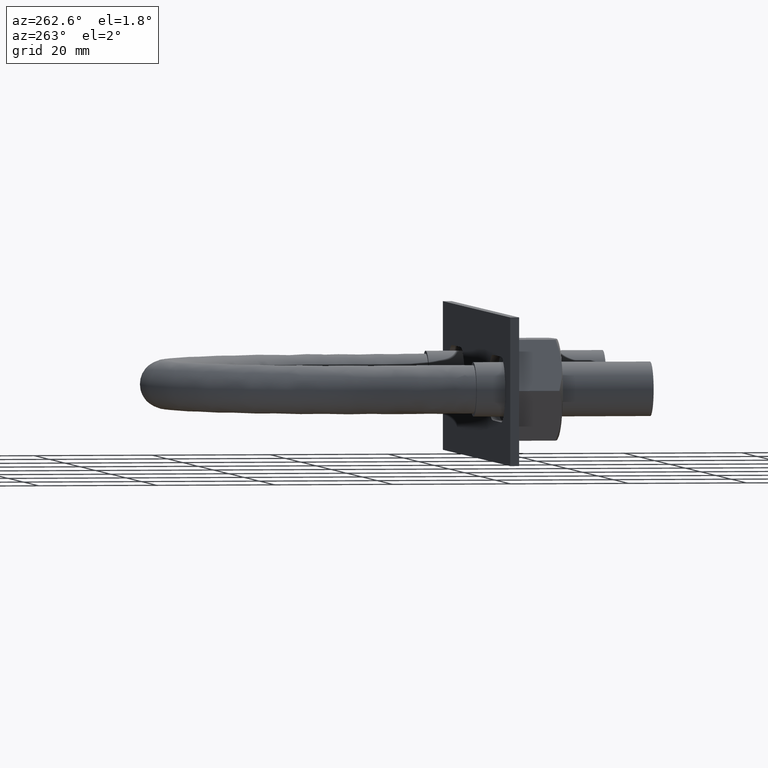
[diagram: clean part render]
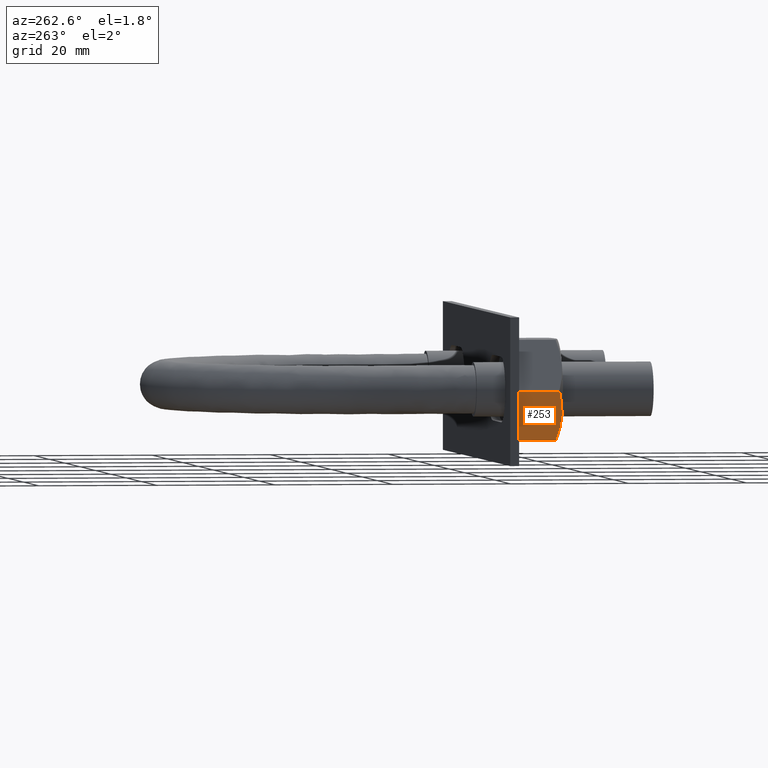
[diagram: same view with one face highlighted and labeled with its STEP entity id]
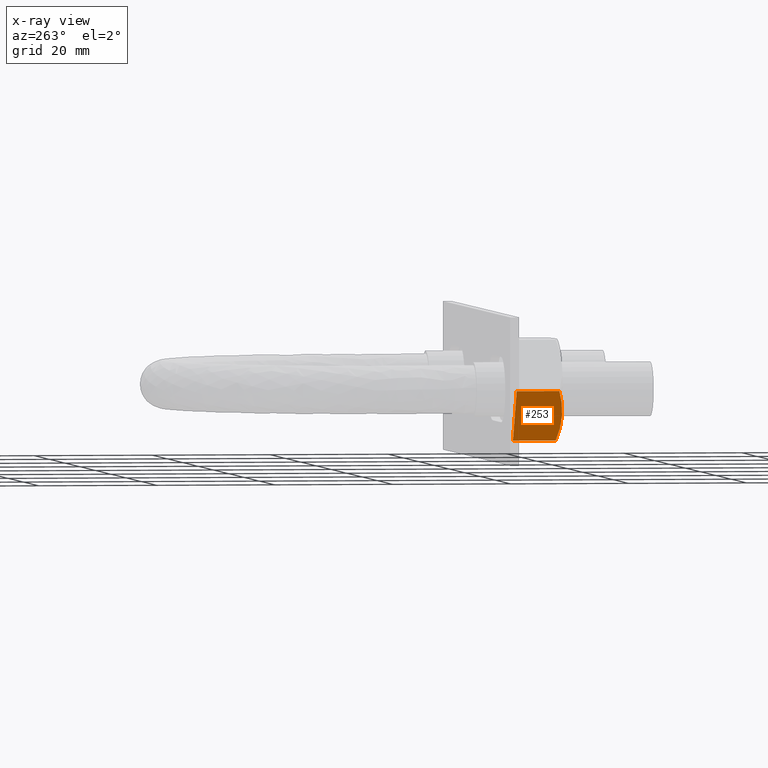
[diagram: x-ray of the same camera — body ghosted, the highlighted face saturated]
A machine part, auxiliary view. The second image highlights one B-rep face of the part: STEP entity #253.
The next image is the same camera in x-ray: the body ghosted, the highlighted face saturated — about 0% of this face is hidden behind the body in this view.
In plain terms, the highlighted planar face has unit normal (0.866, -0, 0.5).
Its self-contained STEP definition (entity closure, byte-faithful):
#253 = ADVANCED_FACE( '', ( #370 ), #371, .F. );
#370 = FACE_OUTER_BOUND( '', #680, .T. );
#371 = PLANE( '', #681 );
#680 = EDGE_LOOP( '', ( #1020, #1021, #1022, #1023, #1024 ) );
#681 = AXIS2_PLACEMENT_3D( '', #1025, #1026, #1027 );
#1020 = ORIENTED_EDGE( '', *, *, #1380, .F. );
#1021 = ORIENTED_EDGE( '', *, *, #1375, .F. );
#1022 = ORIENTED_EDGE( '', *, *, #1381, .F. );
#1023 = ORIENTED_EDGE( '', *, *, #1367, .F. );
#1024 = ORIENTED_EDGE( '', *, *, #1382, .F. );
#1025 = CARTESIAN_POINT( '', ( -35.9074772881118, -6.09999999999999, -8.50000000000000 ) );
#1026 = DIRECTION( '', ( 0.866025403784439, -5.30270106023007E-017, 0.500000000000000 ) );
#1027 = DIRECTION( '', ( 0.500000000000000, -3.06151588455594E-017, -0.866025403784439 ) );
#1367 = EDGE_CURVE( '', #1583, #1585, #1586, .T. );
#1375 = EDGE_CURVE( '', #1597, #1546, #1599, .T. );
#1380 = EDGE_CURVE( '', #1546, #1604, #1605, .T. );
#1381 = EDGE_CURVE( '', #1585, #1597, #1606, .F. );
#1382 = EDGE_CURVE( '', #1604, #1583, #1607, .T. );
#1546 = VERTEX_POINT( '', #1872 );
#1583 = VERTEX_POINT( '', #1927 );
#1585 = VERTEX_POINT( '', #1929 );
#1586 = LINE( '', #1930, #1931 );
#1597 = VERTEX_POINT( '', #1952 );
#1599 = B_SPLINE_CURVE_WITH_KNOTS( '', 3, ( #1954, #1955, #1956, #1957, #1958, #1959 ), .UNSPECIFIED., .F., .F., ( 4, 2, 4 ), ( 4.83064900407620E-007, 0.00246777364959070, 0.00493506423428099 ), .UNSPECIFIED. );
#1604 = VERTEX_POINT( '', #1976 );
#1605 = B_SPLINE_CURVE_WITH_KNOTS( '', 3, ( #1977, #1978, #1979, #1980, #1981, #1982, #1983, #1984 ), .UNSPECIFIED., .F., .F., ( 4, 2, 2, 4 ), ( 0.00493506423428099, 0.00616384870526321, 0.00739263317624543, 0.00985020211820987 ), .UNSPECIFIED. );
#1606 = LINE( '', #1985, #1986 );
#1607 = LINE( '', #1987, #1988 );
#1872 = CARTESIAN_POINT( '', ( -38.3612159321677, -14.1000000000000, -4.25000000000000 ) );
#1927 = CARTESIAN_POINT( '', ( -35.9224662525163, -6.09999999999999, -8.47403835209862 ) );
#1929 = CARTESIAN_POINT( '', ( -40.7999656118192, -6.09999999999999, -0.0259616479013781 ) );
#1930 = CARTESIAN_POINT( '', ( -40.8112159321677, -6.09999999999999, -0.00647552145624942 ) );
#1931 = VECTOR( '', #2339, 1000.00000000000 );
#1952 = CARTESIAN_POINT( '', ( -40.7999656118192, -13.3494446500535, -0.0259616479013807 ) );
#1954 = CARTESIAN_POINT( '', ( -40.7999656118192, -13.3494446500535, -0.0259616479013787 ) );
#1955 = CARTESIAN_POINT( '', ( -40.4009132475383, -13.5787796828723, -0.717140617716312 ) );
#1956 = CARTESIAN_POINT( '', ( -39.9989787792964, -13.7675474634560, -1.41331153802454 ) );
#1957 = CARTESIAN_POINT( '', ( -39.1868332408957, -14.0285851459414, -2.81998887367487 ) );
#1958 = CARTESIAN_POINT( '', ( -38.7765614237886, -14.1000000000000, -3.53060050581789 ) );
#1959 = CARTESIAN_POINT( '', ( -38.3612159321677, -14.1000000000000, -4.25000000000000 ) );
#1976 = CARTESIAN_POINT( '', ( -35.9224662525163, -13.3494446500535, -8.47403835209862 ) );
#1977 = CARTESIAN_POINT( '', ( -38.3612159321677, -14.1000000000000, -4.25000000000000 ) );
#1978 = CARTESIAN_POINT( '', ( -38.1543614605610, -14.1000000000000, -4.60828245459559 ) );
#1979 = CARTESIAN_POINT( '', ( -37.9464724694540, -14.0822887918237, -4.96835674952724 ) );
#1980 = CARTESIAN_POINT( '', ( -37.5352159436566, -14.0136978063788, -5.68067394715264 ) );
#1981 = CARTESIAN_POINT( '', ( -37.3309547652762, -13.9628883495806, -6.03446468612132 ) );
#1982 = CARTESIAN_POINT( '', ( -36.7217813693342, -13.7668505986087, -7.08958395851212 ) );
#1983 = CARTESIAN_POINT( '', ( -36.3204658996231, -13.5781746872645, -7.78468274191512 ) );
#1984 = CARTESIAN_POINT( '', ( -35.9224662525163, -13.3494446500535, -8.47403835209862 ) );
#1985 = CARTESIAN_POINT( '', ( -40.7999656118192, -6.09999999999999, -0.0259616479013807 ) );
#1986 = VECTOR( '', #2354, 1000.00000000000 );
#1987 = CARTESIAN_POINT( '', ( -35.9224662525163, -6.09999999999999, -8.47403835209862 ) );
#1988 = VECTOR( '', #2355, 1000.00000000000 );
#2339 = DIRECTION( '', ( -0.500000000000000, 3.06151588455594E-017, 0.866025403784439 ) );
#2354 = DIRECTION( '', ( 6.12303176911189E-017, 1.00000000000000, -4.95179021115217E-066 ) );
#2355 = DIRECTION( '', ( 6.12303176911189E-017, 1.00000000000000, -4.95179021115217E-066 ) );